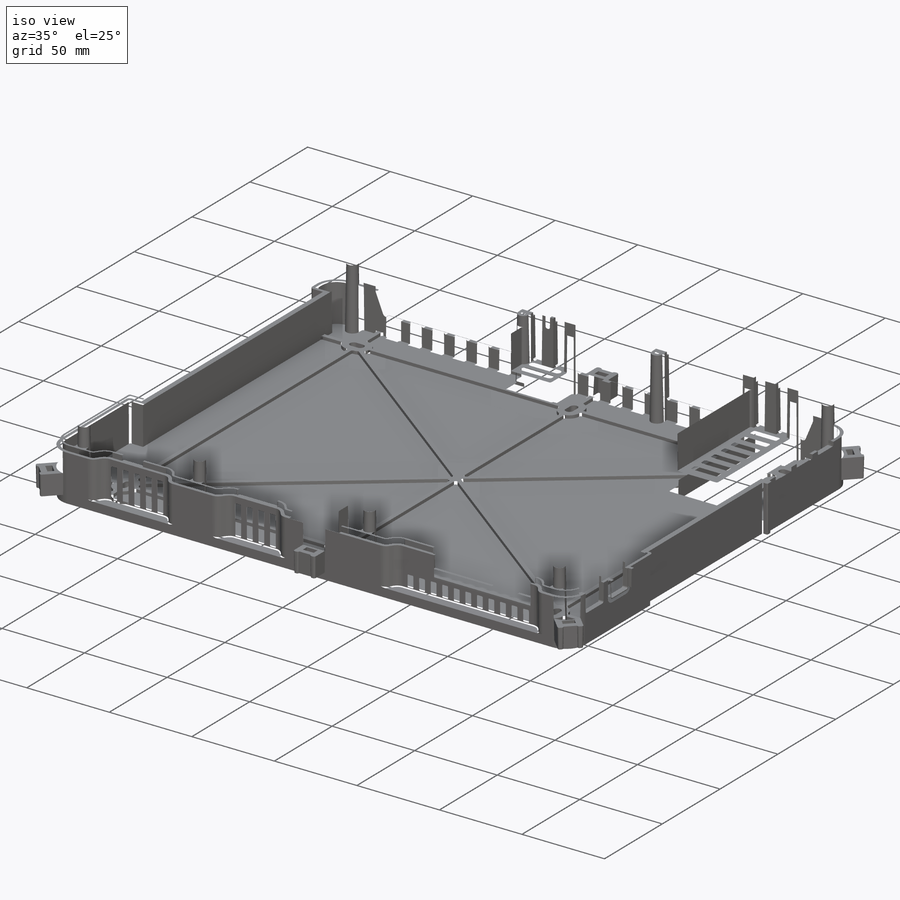
[diagram: iso view]
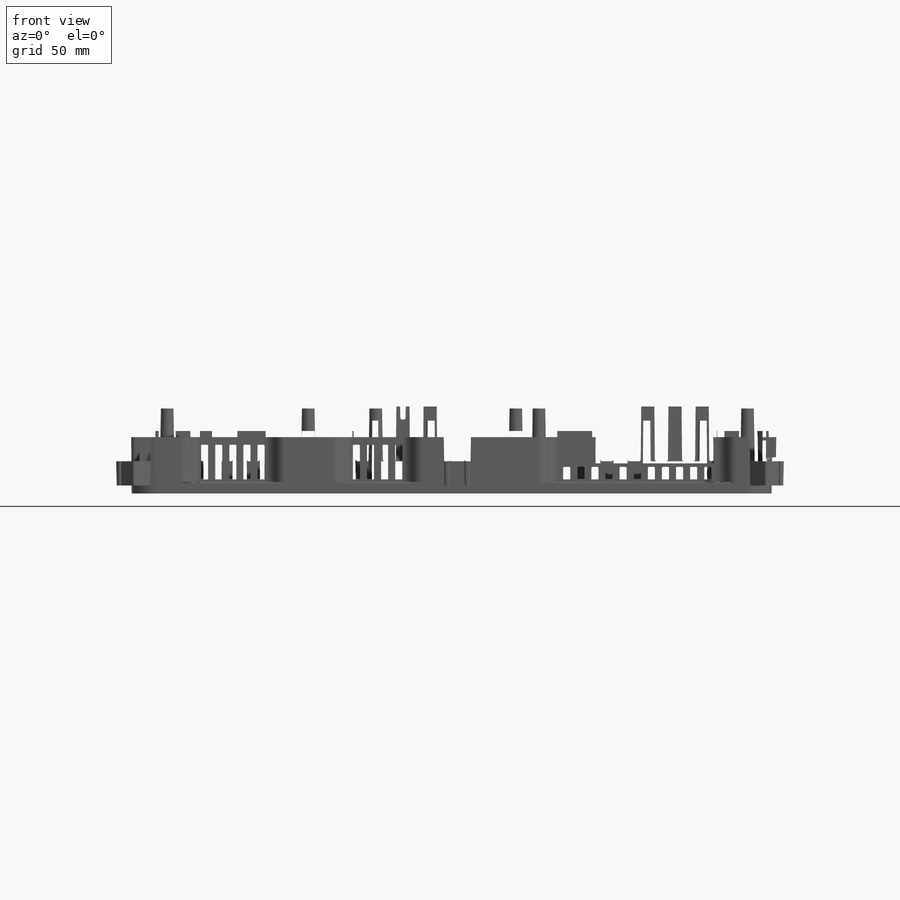
[diagram: front view]
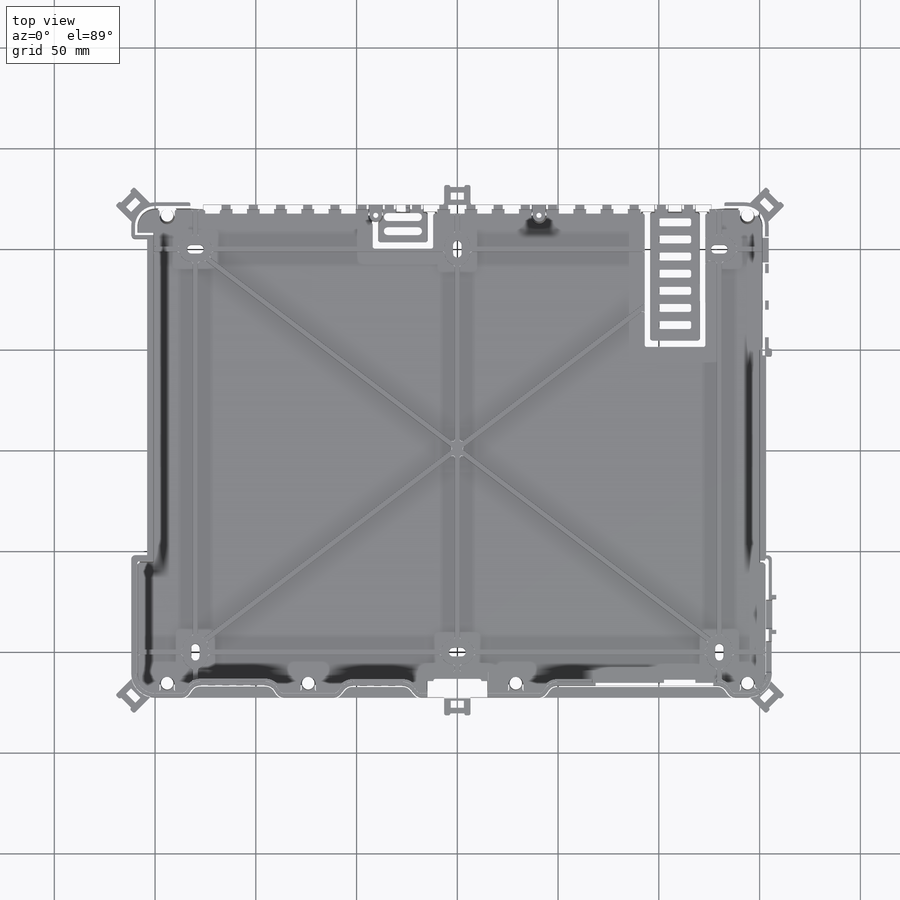
[diagram: top view]
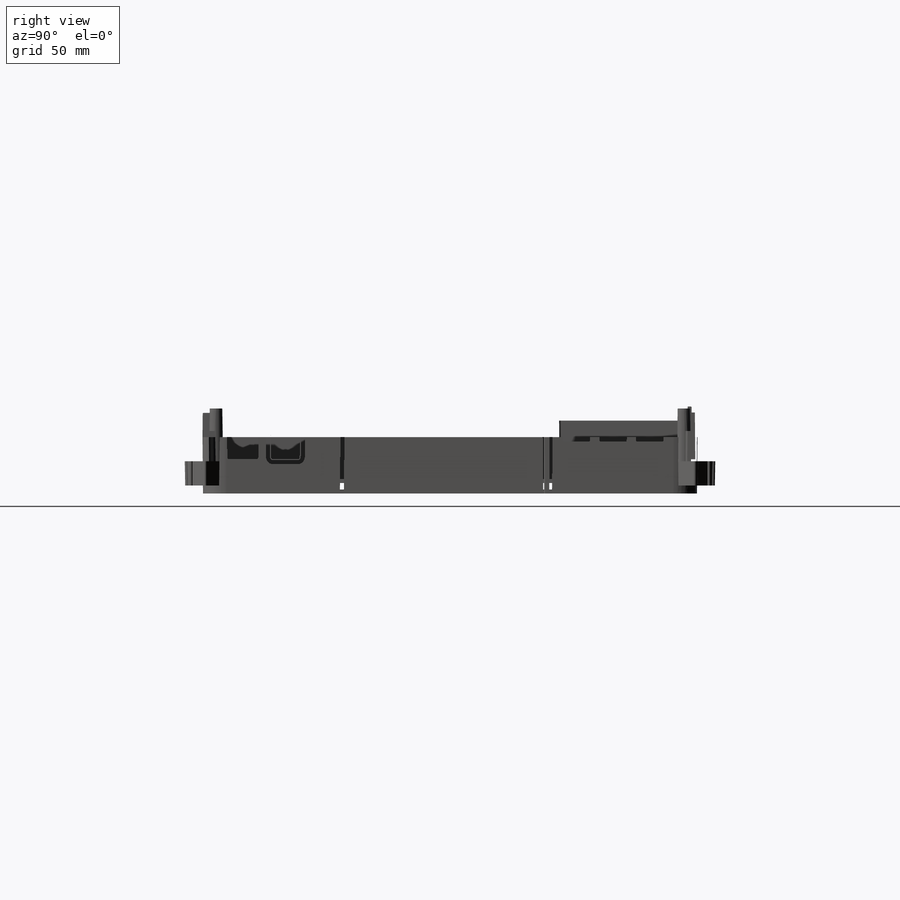
[diagram: right view]
SOLIDWORKS PART (.sldprt)
format: sldprt  version: not decoded by parser v0  size: 6,356,992 bytes
history: native  units: mm
features: sketch x69, fillet x48, cut_extrude x25, extrude x17, pattern_linear x11, plane x9, mirror x7, material x1 (+10 scaffold rows collapsed)
feature tree (197):
  scaffold x10  (default folders/planes/origin — collapsed)
  material  "Material <not specified>"
  plane  "Спереди"
  plane  "Сверху"
  plane  "Справа"
  sketch  "Эскиз1"  dims[c1.D1=~5.910152mm c1.D2=~2.854734mm c1.D3=99.0mm c2.D1=28.0mm c2.D3=0.5deg c2.D5=3.5mm c2.D6=1.0mm c2.D7=5.0mm]
  sketch  "Эскиз2"  dims[D1=1.0mm D2=1.0mm]
  extrude  "Бобышка-Вытянуть2"  Depth=3.2mm
  sketch  "Эскиз3"
  extrude  "Бобышка-Вытянуть3"  [1 undecoded]
  sketch  "Эскиз4"
  extrude  "Бобышка-Вытянуть4"  [1 undecoded]
  sketch  "Эскиз5"  dims[D2=2.2mm D1=4.0mm D3=100.0mm D4=200.0mm D5=130.0mm]
  cut_extrude  "Вырез-Вытянуть1"  Depth=16mm
  sketch  "Эскиз6"  dims[D1=4.0mm D2=4.4mm]
  cut_extrude  "Вырез-Вытянуть2"  Depth=16mm
  sketch  "Эскиз7"  dims[D1=4.0mm D2=4.0mm]
  extrude  "Бобышка-Вытянуть5"  Depth=1.8mm
  sketch  "Sketch42"
  cut_extrude  "Cut-Extrude20"  [1 undecoded]
  mirror  "Зеркальное отражение1"
  sketch  "Эскиз10"  dims[D1=4.0mm]
  extrude  "Бобышка-Вытянуть6"  Depth=1.8mm
  sketch  "Эскиз9"  dims[D1=1.8mm D3=2.0deg D4=2.0deg D5=2.6mm D6=1.0mm D7=5.0mm]
  sketch  "Эскиз11"  dims[D1=1.8mm D3=3.0deg D4=3.0deg D5=2.6mm D6=1.0mm D7=5.0mm]
  mirror  "Зеркальное отражение2"
  plane  "Плоскость1"
  sketch  "Эскиз12"
  extrude  "Бобышка-Вытянуть7"  Depth=10mm
  fillet  "Скругление1"  Radius=1mm
  sketch  "Эскиз13"  dims[c1.D1=2.0mm c2.D1=2.0deg]
  mirror  "Зеркальное отражение3"
  sketch  "Sketch43"  dims[D3=2.0deg D5=2.3765mm D6=1.0mm D7=5.0mm]
  sketch  "Эскиз14"  dims[c1.D1=7.0mm c1.D2=4.0mm c1.D3=2.5mm c1.D4=3.0mm c1.D5=7.0mm c1.D6=1.0mm c2.D1=3.8mm c2.D3=1.0mm c2.D4=3.0mm c2.D5=7.0mm]
  extrude  "Бобышка-Вытянуть8"  Depth=10mm
  fillet  "Скругление2"  Radius=1mm
  plane  "Плоскость2"
  mirror  "Зеркальное отражение4"
  plane  "Плоскость3"
  mirror  "Зеркальное отражение5"
  sketch  "Эскиз16"  dims[D2=18.2245mm D1=0.0mm]
  cut_extrude  "Вырез-Вытянуть5"  Depth=2.33mm
  fillet  "Скругление3"  Radius=0.64mm
  sketch  "Эскиз20"
  sketch  "Эскиз21"  dims[D1=30.0mm]
  extrude  "Бобышка-Вытянуть9"  Depth=12mm
  fillet  "Скругление5"  Radius=0.5mm
  sketch  "Эскиз22"  dims[D1=24.0mm]
  cut_extrude  "Вырез-Вытянуть9"  Depth=35mm
  sketch  "Эскиз23"  dims[D3=1.0deg D4=1.0deg D5=3.5mm D6=1.0mm D7=5.0mm D1=2.0deg]
  sketch  "Эскиз24"
  sketch  "Эскиз25"  dims[c1.D1=7.5mm c1.D3=7.5mm c1.D2=103.0mm c2.D3=115.0mm]
  extrude  "Бобышка-Вытянуть10"  Depth=37mm
  sketch  "Эскиз26"  dims[D1=2.5mm]
  cut_extrude  "Вырез-Вытянуть10"  Depth=39mm
  sketch  "Эскиз32"  dims[c1.D1=12.0mm c1.D2=255.0mm c1.D3=~271.44786mm c1.D4=~65.504674mm c2.D3=0.0mm c2.D4=5.0mm]
  cut_extrude  "Вырез-Вытянуть13"  Depth=12mm
  fillet  "Скругление8"  Radius=2mm
  sketch  "Эскиз33"  dims[D1=0.5mm D2=1.0mm D3=3.5mm D4=~0.485408mm]
  cut_extrude  "Вырез-Вытянуть14"  Depth=22mm
  pattern_linear  "Линейный массив2"  Count1=5 Count2=1 Spacing1=7mm Spacing2=10mm
  sketch  "Эскиз34"  dims[D1=3.5mm D2=0.25mm]
  cut_extrude  "Вырез-Вытянуть15"  Depth=22mm
  pattern_linear  "Линейный массив3"  Count1=4 Count2=1 Spacing1=7mm Spacing2=10mm
  sketch  "Эскиз35"  dims[D1=1.0mm D2=4.0mm D3=7.0mm]
  extrude  "Бобышка-Вытянуть11"  Depth=24.2mm
  fillet  "Скругление9"  Radius=1mm
  pattern_linear  "Линейный массив4"  Count1=13 Count2=7 Spacing1=13.5mm Spacing2=13.5mm
  fillet  "Скругление10"  Radius=1mm
  sketch  "Sketch1"  dims[D1=2.0mm]
  extrude  "Boss-Extrude1"  Depth=3mm
  fillet  "Fillet1"  Radius=0.5mm
  pattern_linear  "LPattern1"  Count1=19 Count2=1 Spacing1=13.5mm Spacing2=0mm
  fillet  "Fillet2"  Radius=0.75mm
  sketch  "Sketch3"  dims[c1.D1=9.0mm c1.D2=1.6mm c1.D3=~25.296566mm c2.D1=3.0mm c2.D3=0.3deg c2.D5=1.25mm c2.D6=1.0mm c2.D7=5.0mm]
  sketch  "Sketch5"  dims[D1=9.0mm]
  sketch  "Sketch8"
  cut_extrude  "Cut-Extrude1"  Depth=13mm
  sketch  "Эскиз37"
  cut_extrude  "Вырез-Вытянуть17"  Depth=10mm
  fillet  "Скругление16"  Radius=1mm
  fillet  "Скругление17"  Radius=1mm
  fillet  "Скругление18"  Radius=1mm
  fillet  "Скругление20"  Radius=1mm
  sketch  "Эскиз40"
  sketch  "Sketch24"  dims[c1.D1=4.62mm c1.D2=13.6mm c2.D1=3.0mm c2.D3=0.5deg c2.D5=1.3mm c2.D6=1.0mm c2.D7=5.0mm]
  sketch  "Sketch9"
  sketch  "Sketch10"
  sketch  "Sketch11"  dims[c1.D1=5.0mm c1.D2=21.0mm c2.D1=31.0mm c2.D3=0.5deg c2.D5=3.0mm c2.D6=1.0mm c2.D7=5.0mm]
  fillet  "Fillet5"  Radius=1mm
  sketch  "Эскиз41"
  cut_extrude  "Вырез-Вытянуть18"  Depth=9mm
  sketch  "Эскиз42"
  extrude  "Бобышка-Вытянуть13"  [1 undecoded]
  sketch  "Эскиз43"  dims[D3=1.0deg D5=2.0mm D6=1.0mm D7=5.0mm]
  fillet  "Скругление21"  Radius=2mm
  fillet  "Скругление22"  Radius=1mm
  sketch  "Эскиз44"
  extrude  "Бобышка-Вытянуть14"  [1 undecoded]
  sketch  "Эскиз45"  dims[D1=4.0mm D2=16.0mm]
  cut_extrude  "Вырез-Вытянуть19"  Depth=10mm
  fillet  "Скругление24"  Radius=1mm
  pattern_linear  "Линейный массив5"  Count1=7 Count2=1 Spacing1=8.5mm Spacing2=10mm
  sketch  "Эскиз46"
  extrude  "Бобышка-Вытянуть15"  [1 undecoded]
  sketch  "Эскиз47"  dims[D1=2.8mm]
  cut_extrude  "Вырез-Вытянуть20"  Depth=6.5mm
  fillet  "Скругление25"  Radius=1mm
  sketch  "Эскиз48"  dims[D3=1.0deg D5=2.5mm D6=1.0mm D7=5.0mm]
  sketch  "Эскиз49"  dims[D1=19.0mm D2=4.0mm]
  cut_extrude  "Вырез-Вытянуть21"  Depth=6mm
  fillet  "Скругление26"  Radius=2mm
  pattern_linear  "Линейный массив6"  Count1=2 Count2=1 Spacing1=7mm Spacing2=10mm
  sketch  "Sketch12"
  fillet  "Fillet6"  Radius=10mm
  sketch  "Sketch14"  dims[D1=6.13mm D2=14.4mm D3=18.01mm D4=14.4mm]
  cut_extrude  "Cut-Extrude2"  Depth=11mm
  fillet  "Fillet8"  Radius=1mm
  sketch  "Sketch16"  dims[D3=0.5deg D5=1.6mm D6=1.0mm D7=5.0mm]
  fillet  "Fillet9"  Radius=1mm
  fillet  "Fillet10"  Radius=2mm
  sketch  "Sketch22"  dims[D1=3.5mm D2=3.015mm]
  cut_extrude  "Cut-Extrude5"  Depth=14mm
  pattern_linear  "LPattern2"  Count1=11 Count2=1 Spacing1=7mm Spacing2=10mm
  fillet  "Fillet15"  Radius=1mm
  sketch  "Sketch23"  dims[D1=54.0mm D2=1.32mm]
  fillet  "Fillet16"  Radius=0.7mm
  fillet  "Fillet17"  Radius=0.7mm
  fillet  "Fillet18"  Radius=0.5mm
  sketch  "Sketch25"  dims[c1.D1=~0.565907mm c1.D2=~0.469847mm c2.D1=0.25mm c2.D2=0.5mm c2.D3=1.0mm]
  cut_extrude  "Cut-Extrude14"  Depth=15mm
  fillet  "Fillet20"  Radius=0.5mm
  fillet  "Fillet22"  Radius=1mm
  fillet  "Fillet23"  Radius=1mm
  sketch  "Sketch26"  dims[c1.D1=3.2mm c2.D1=3.0mm c2.D3=0.5deg c2.D5=1.3mm c2.D6=1.0mm c2.D7=5.0mm]
  sketch  "Sketch27"
  sketch  "Sketch28"  dims[D1=15.3mm D2=61.8mm]
  cut_extrude  "Cut-Extrude16"  Depth=8.5mm
  sketch  "Sketch29"  dims[D1=2.1mm D2=~10.439203mm D3=~15.568942mm]
  cut_extrude  "Cut-Extrude17"  [1 undecoded]
  fillet  "Fillet25"  Radius=3mm
  sketch  "Sketch30"  dims[D1=1.41mm D2=2.5mm D3=2.5mm]
  cut_extrude  "Cut-Extrude18"  Depth=3.5mm
  sketch  "Sketch32"  dims[D3=0.5deg D5=1.285mm D6=1.0mm D7=5.0mm]
  pattern_linear  "LPattern3"  Count1=3 Count2=1 Spacing1=18.22mm Spacing2=10mm
  sketch  "Sketch33"  dims[D1=2.7mm]
  cut_extrude  "Cut-Extrude19"  Depth=10mm
  plane  "Plane1"
  sketch  "Sketch36"  dims[D1=2.0mm D2=2.0mm D3=0.3mm]
  sketch  "Sketch34"  dims[c1.D1=0.5mm c1.D2=0.5mm c1.D3=0.5mm c2.D1=2.2mm c2.D2=1.0mm c2.D5=2.0mm c2.D6=1.0mm c2.D7=5.0mm]
  plane  "Plane2"
  sketch  "Sketch35"  dims[D1=1.0deg]
  fillet  "Fillet26"  Radius=0.7mm
  extrude  "Boss-Extrude2"  Depth=1mm
  sketch  "Sketch37"  dims[D1=0.0mm]
  extrude  "Boss-Extrude3"  [1 undecoded]
  plane  "Plane3"
  mirror  "Mirror1"
  mirror  "Mirror2"
  sketch  "Sketch38"  dims[c1.D1=14.0mm c1.D3=1.5deg c1.D5=0.43mm c1.D6=0.6mm c1.D7=5.0mm c2.D1=1.0deg c3.D1=1.0deg]
  sketch  "Sketch39"  dims[D3=0.35deg D5=0.2mm D6=1.0mm D7=5.0mm]
  sketch  "Sketch40"  dims[D3=0.35deg D5=0.2mm D6=1.0mm D7=5.0mm D1=1.0deg]
  fillet  "Fillet60"  Radius=0.4mm
  fillet  "Fillet61"  Radius=0.4mm
  fillet  "Fillet62"  Radius=0.4mm
  fillet  "Fillet34"  Radius=0.5mm
  fillet  "Fillet63"  Radius=0.4mm
  fillet  "Fillet66"  Radius=0.4mm
  fillet  "Fillet67"  Radius=50mm
  sketch  "Sketch44"  dims[D1=1.0mm D2=18.0mm D3=3.5mm D4=0.5175mm]
  cut_extrude  "Cut-Extrude21"  Depth=4mm
  fillet  "Fillet68"  Radius=0.5mm
  pattern_linear  "LPattern4"  Count1=5 Count2=1 Spacing1=7mm Spacing2=50mm
  fillet  "Fillet69"  Radius=0.5mm
  fillet  "Fillet70"  Radius=0.5mm
  sketch  "Sketch45"  dims[D1=3.5mm D2=18.0mm D3=1.0mm D4=0.245mm]
  cut_extrude  "Cut-Extrude22"  Depth=4mm
  fillet  "Fillet71"  Radius=0.5mm
  pattern_linear  "LPattern5"  Count1=4 Count2=1 Spacing1=7mm Spacing2=50mm
  sketch  "Sketch46"  dims[D1=1.0mm D2=7.0mm D3=3.5mm D4=2.97mm]
  cut_extrude  "Cut-Extrude23"  Depth=4mm
  fillet  "Fillet72"  Radius=0.5mm
  pattern_linear  "LPattern6"  Count1=11 Count2=1 Spacing1=7mm Spacing2=50mm
  fillet  "Fillet73"  Radius=1mm
  fillet  "Fillet74"  Radius=0.5mm
  extrude  "Boss-Extrude5"  [1 undecoded]
  fillet  "Fillet76"  Radius=1mm
  fillet  "Fillet77"  Radius=1mm
decode coverage: 144 of 177 modeling features carry decoded parameters
note: ~ marks probable driven/reference dimensions
note: 9 parameter values undecoded
summary: no parameter record found for 9 features
note: suppression state not decoded; provenance and decode notes live in map.json
